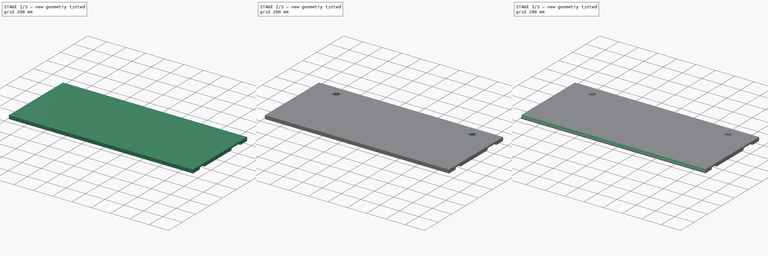
[diagram: build sequence overview — one tinted view per stage of 3, left to right]
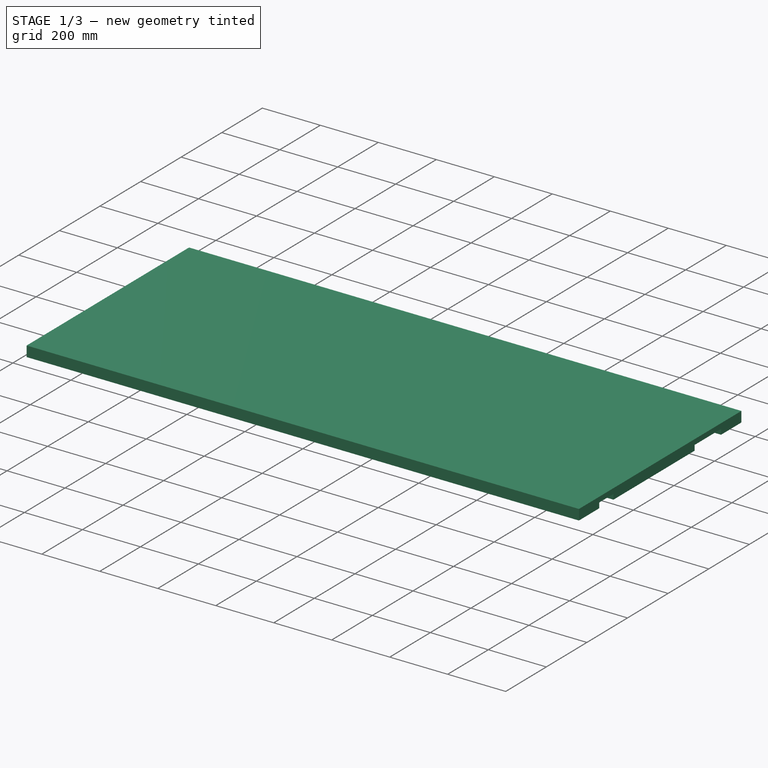
[diagram: stage 1 of 3 — iso view after this stage's code; geometry added in this stage tinted green]
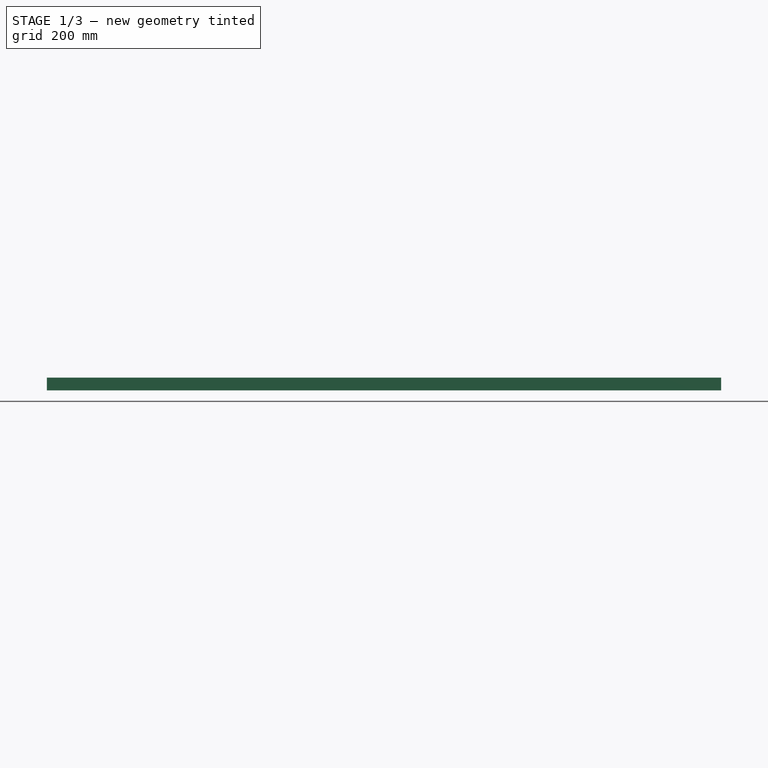
[diagram: stage 1 of 3 — front view after this stage's code; geometry added in this stage tinted green]
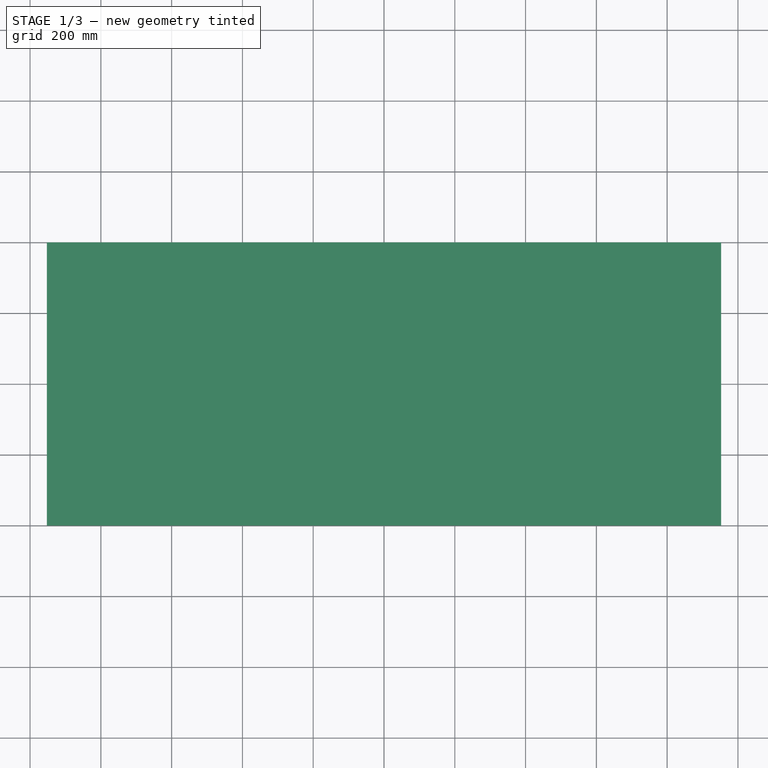
[diagram: stage 1 of 3 — top view after this stage's code; geometry added in this stage tinted green]
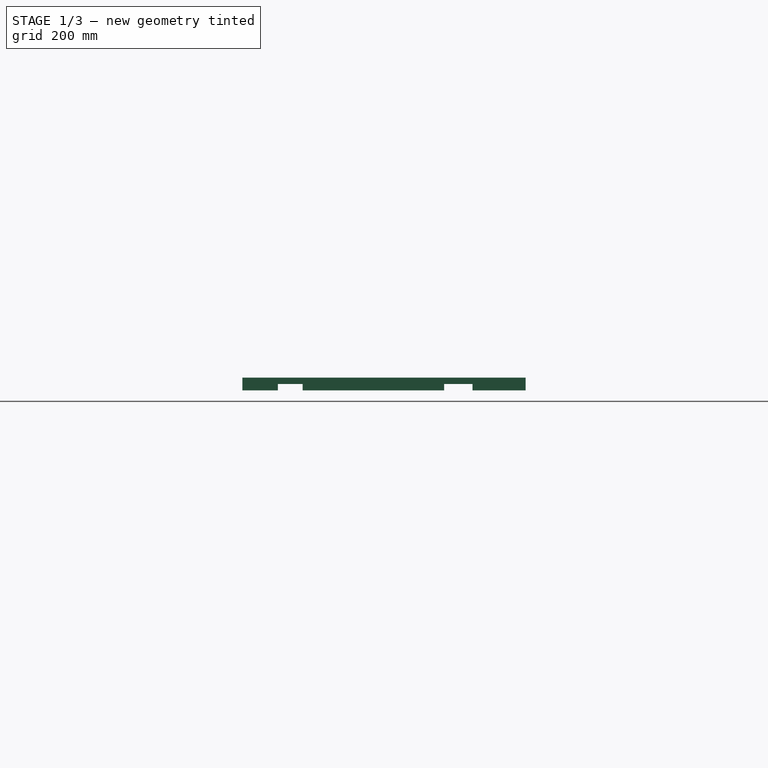
[diagram: stage 1 of 3 — right view after this stage's code; geometry added in this stage tinted green]
FCSTD DOCUMENT  (FreeCAD 0.20R29177 +426 (Git))
Label: desks
License: All rights reserved
LicenseURL: http://en.wikipedia.org/wiki/All_rights_reserved
objects: Sketcher::SketchObject×3, PartDesign::Pad×2, PartDesign::Fillet×2, PartDesign::Pocket×1, PartDesign::Chamfer×1, PartDesign::Body×1
note: 16 computed .brp shape members not serialized (recipe doc carries the construction recipe); baked Part::Feature solids carry a one-line shape summary decoded from their .brp

FEATURE [Sketcher::SketchObject] Sketch004  label="Sketch: Raw Board"
  FullyConstrained = true
  MapMode = 5
  Support = -> [XY_Plane002]
  sketch-geometry (4):
    g0: LineSegment StartX=-952.5 StartY=400 StartZ=0 EndX=952.5 EndY=400 EndZ=0
    g1: LineSegment StartX=952.5 StartY=400 StartZ=0 EndX=952.5 EndY=-400 EndZ=0
    g2: LineSegment StartX=952.5 StartY=-400 StartZ=0 EndX=-952.5 EndY=-400 EndZ=0
    g3: LineSegment StartX=-952.5 StartY=-400 StartZ=0 EndX=-952.5 EndY=400 EndZ=0
  constraints (11):
    c: Coincident(g0,g1)
    c: Coincident(g1,g2)
    c: Coincident(g2,g3)
    c: Coincident(g3,g0)
    c: Horizontal(g0)
    c: Horizontal(g2)
    c: Vertical(g1)
    c: Vertical(g3)
    c: Symmetric(g0,g1,g-1)
    c: Distance(g0) = 1905
    c: Distance(g1) = 800
FEATURE [PartDesign::Pad] Pad001  label="Raw Board"
  Direction = (0,0,1)
  Length = 18
  Length2 = 10
  Profile = -> Sketch004
  ReferenceAxis = -> Sketch004 [N_Axis]
  Refine = true
  Type = 0
FEATURE [Sketcher::SketchObject] Sketch005  label="Sketch: Holes"
  ExternalGeometry = -> [Pad001]
  FullyConstrained = true
  MapMode = 5
  Placement = pos=(0,0,18) rot=(0,0,1;0rad)
  Support = -> [Pad001]
  sketch-geometry (2):
    g0: Circle CenterX=-702.5 CenterY=300 CenterZ=0 NormalX=0 NormalY=0 NormalZ=1 AngleXU=0 Radius=28
    g1: Circle CenterX=702.5 CenterY=300 CenterZ=0 NormalX=0 NormalY=0 NormalZ=1 AngleXU=0 Radius=28
  constraints (5):
    c: Distance(g0,g-3) = 250
    c: Symmetric(g1,g0,g-2)
    c: Distance(g0,g-4) = 100
    c: Diameter(g0) = 56
    c: Equal(g1,g0)
FEATURE [Sketcher::SketchObject] Sketch006  label="Sketch: Support"
  ExternalGeometry = -> [Pad001,Sketch005]
  FullyConstrained = true
  MapMode = 5
  Placement = pos=(0,0,0) rot=(1,0,0;3.14159rad)
  Support = -> [Pad001]
  sketch-geometry (28):
    g0: LineSegment StartX=-952.5 StartY=400 StartZ=0 EndX=952.5 EndY=400 EndZ=0
    g1: LineSegment StartX=952.5 StartY=400 StartZ=0 EndX=952.5 EndY=300 EndZ=0
    g2: LineSegment StartX=952.5 StartY=300 StartZ=0 EndX=-952.5 EndY=300 EndZ=0
    g3: LineSegment StartX=-952.5 StartY=300 StartZ=0 EndX=-952.5 EndY=400 EndZ=0
    g4: LineSegment StartX=952.5 StartY=-300 StartZ=0 EndX=952.5 EndY=-400 EndZ=0
    g5: LineSegment StartX=952.5 StartY=-400 StartZ=0 EndX=-952.5 EndY=-400 EndZ=0
    g6: LineSegment StartX=-952.5 StartY=-400 StartZ=0 EndX=-952.5 EndY=-300 EndZ=0
    g7: LineSegment StartX=-952.5 StartY=-300 StartZ=0 EndX=-747.5 EndY=-300 EndZ=0
    g8: LineSegment StartX=-747.5 StartY=-300 StartZ=0 EndX=-747.5 EndY=-250 EndZ=0
    g9: LineSegment StartX=-747.5 StartY=-250 StartZ=0 EndX=-657.5 EndY=-250 EndZ=0
    g10: LineSegment StartX=-657.5 StartY=-250 StartZ=0 EndX=-657.5 EndY=-300 EndZ=0
    g11: LineSegment StartX=-657.5 StartY=-300 StartZ=0 EndX=657.5 EndY=-300 EndZ=0
    g12: LineSegment StartX=657.5 StartY=-300 StartZ=0 EndX=657.5 EndY=-250 EndZ=0
    g13: LineSegment StartX=657.5 StartY=-250 StartZ=0 EndX=747.5 EndY=-250 EndZ=0
    g14: LineSegment StartX=747.5 StartY=-250 StartZ=0 EndX=747.5 EndY=-300 EndZ=0
    g15: LineSegment StartX=747.5 StartY=-300 StartZ=0 EndX=952.5 EndY=-300 EndZ=0
    g16: LineSegment StartX=-747.5 StartY=-300 StartZ=0 EndX=-702.5 EndY=-300 EndZ=0
    g17: LineSegment StartX=-702.5 StartY=-300 StartZ=0 EndX=-657.5 EndY=-300 EndZ=0
    g18: LineSegment StartX=-952.5 StartY=230 StartZ=0 EndX=-862.5 EndY=230 EndZ=0
    g19: LineSegment StartX=-862.5 StartY=230 StartZ=0 EndX=-862.5 EndY=-170 EndZ=0
    g20: LineSegment StartX=-862.5 StartY=-170 StartZ=0 EndX=-952.5 EndY=-170 EndZ=0
    g21: LineSegment StartX=-952.5 StartY=-170 StartZ=0 EndX=-952.5 EndY=230 EndZ=0
    g22: LineSegment StartX=862.5 StartY=230 StartZ=0 EndX=952.5 EndY=230 EndZ=0
    g23: LineSegment StartX=952.5 StartY=230 StartZ=0 EndX=952.5 EndY=-170 EndZ=0
    g24: LineSegment StartX=952.5 StartY=-170 StartZ=0 EndX=862.5 EndY=-170 EndZ=0
    g25: LineSegment StartX=862.5 StartY=-170 StartZ=0 EndX=862.5 EndY=230 EndZ=0
    g26: LineSegment StartX=657.5 StartY=-300 StartZ=0 EndX=702.5 EndY=-300 EndZ=0
    g27: LineSegment StartX=702.5 StartY=-300 StartZ=0 EndX=747.5 EndY=-300 EndZ=0
  constraints (74):
    c: Coincident(g0,g1)
    c: Coincident(g1,g2)
    c: Coincident(g2,g3)
    c: Coincident(g3,g0)
    c: Horizontal(g2)
    c: Vertical(g1)
    c: Vertical(g3)
    c: Coincident(g0,g-5)
    c: Coincident(g0,g-4)
    c: Distance(g2,g0) = 100
    c: Coincident(g4,g5)
    c: Coincident(g5,g6)
    c: Vertical(g4)
    c: Coincident(g6,g7)
    c: Horizontal(g7)
    c: Coincident(g7,g8)
    c: Coincident(g8,g9)
    c: Horizontal(g9)
    c: Coincident(g9,g10)
    c: Vertical(g10)
    c: Coincident(g10,g11)
    c: Coincident(g11,g12)
    c: Coincident(g12,g13)
    c: Horizontal(g13)
    c: Coincident(g13,g14)
    c: Coincident(g14,g15)
    c: Horizontal(g15)
    c: Coincident(g4,g15)
    c: Coincident(g5,g-6)
    c: Vertical(g6)
    c: Coincident(g4,g-6)
    c: Distance(g6,g5) = 100
    c: Vertical(g8)
    c: Coincident(g16,g7)
    c: Coincident(g17,g16)
    c: Coincident(g17,g10)
    c: Equal(g16,g17)
    c: Distance(g9) = 90
    c: Equal(g8,g10)
    c: Distance(g8) = 50
    c: Vertical(g12)
    c: Equal(g13,g9)
    c: Equal(g12,g10)
    c: Vertical(g14)
    c: Equal(g14,g12)
    c: Coincident(g18,g19)
    c: Coincident(g19,g20)
    c: Coincident(g20,g21)
    c: Coincident(g21,g18)
    c: Horizontal(g18)
    c: Horizontal(g20)
    c: Vertical(g19)
    c: Vertical(g21)
    c: PointOnObject(g18,g-3)
    c: Distance(g18,g2) = 70
    c: Distance(g18,g21) = 90
    c: Distance(g19) = 400
    c: Coincident(g22,g23)
    c: Coincident(g23,g24)
    c: Coincident(g24,g25)
    c: Coincident(g25,g22)
    c: Horizontal(g22)
    c: Horizontal(g24)
    c: Vertical(g23)
    c: Symmetric(g22,g18,g-2)
    c: PointOnObject(g22,g-5)
    c: Symmetric(g24,g19,g-2)
    c: Coincident(g16,g-7)
    c: Horizontal(g11)
    c: Coincident(g26,g11)
    c: Coincident(g26,g-8)
    c: Coincident(g27,g26)
    c: Coincident(g27,g14)
    c: Equal(g27,g26)
FEATURE [PartDesign::Pad] Pad002  label="Support"
  BaseFeature = -> Pad001
  Direction = (0,0,-1)
  Length = 18
  Length2 = 10
  Profile = -> Sketch006
  ReferenceAxis = -> Sketch006 [N_Axis]
  Refine = true
  Type = 0
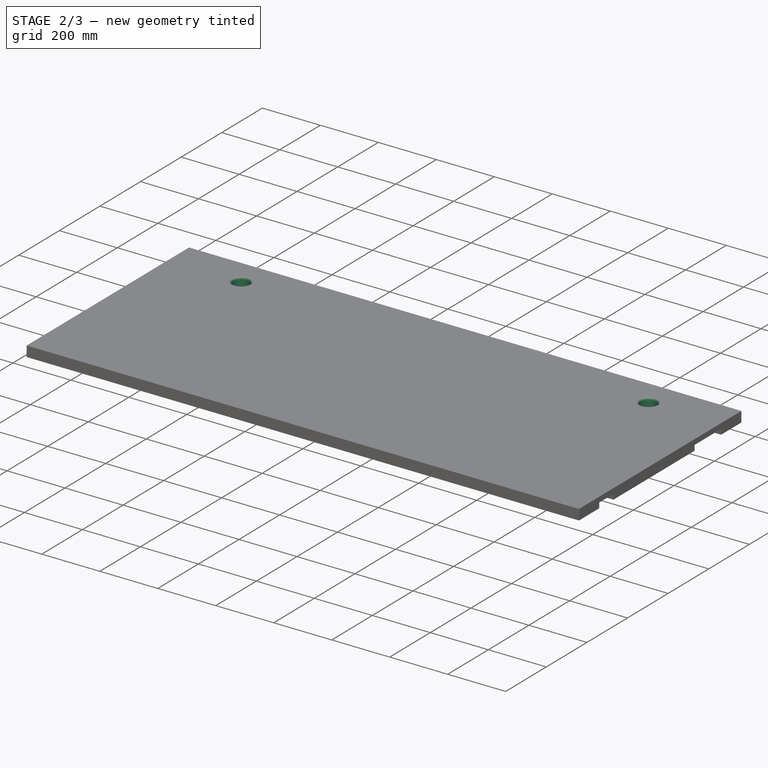
[diagram: stage 2 of 3 — iso view after this stage's code; geometry added in this stage tinted green]
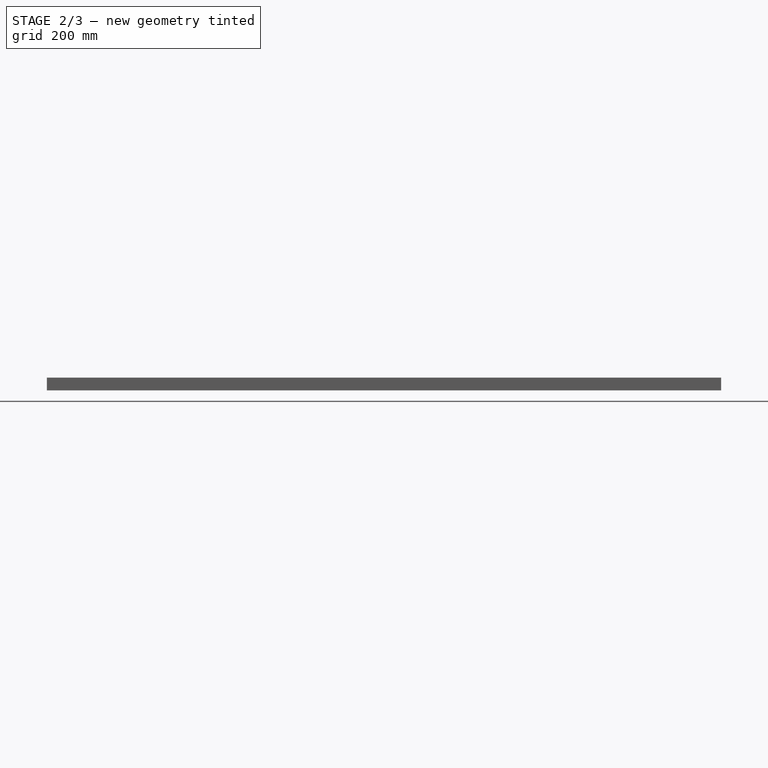
[diagram: stage 2 of 3 — front view after this stage's code; geometry added in this stage tinted green]
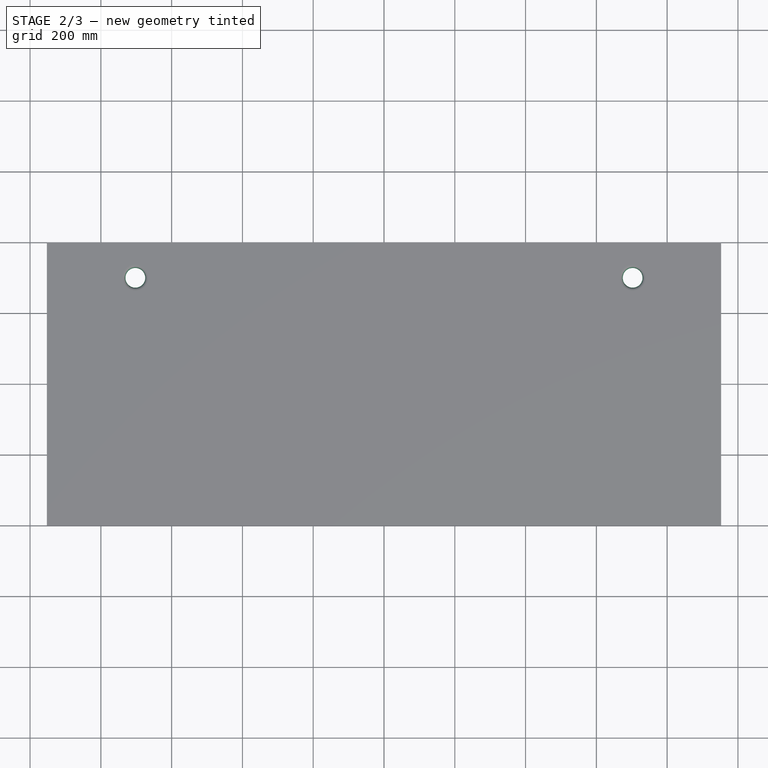
[diagram: stage 2 of 3 — top view after this stage's code; geometry added in this stage tinted green]
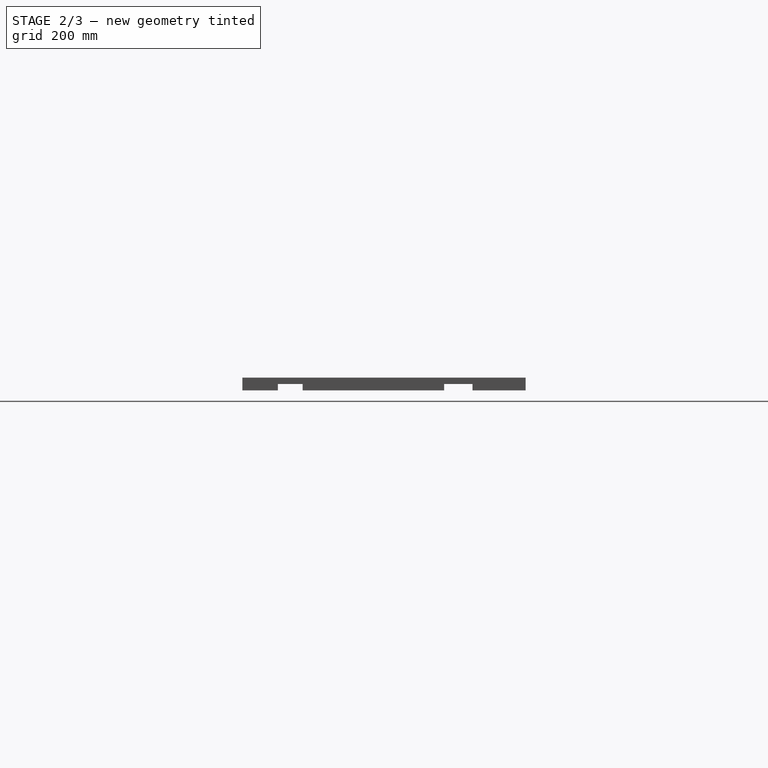
[diagram: stage 2 of 3 — right view after this stage's code; geometry added in this stage tinted green]
FEATURE [PartDesign::Pocket] Pocket
  BaseFeature = -> Pad002
  Direction = (0,0,-1)
  Length = 40
  Length2 = 5
  Profile = -> Sketch005
  ReferenceAxis = -> Sketch005 [N_Axis]
  Refine = true
  Type = 0
FEATURE [PartDesign::Fillet] Fillet002  label="Fillet: Holes"
  Base = -> Pocket [Edge34,Edge32,Edge5,Edge6]
  BaseFeature = -> Pocket
  Radius = 9.2
  Refine = true
  SupportTransform = false
  UseAllEdges = false
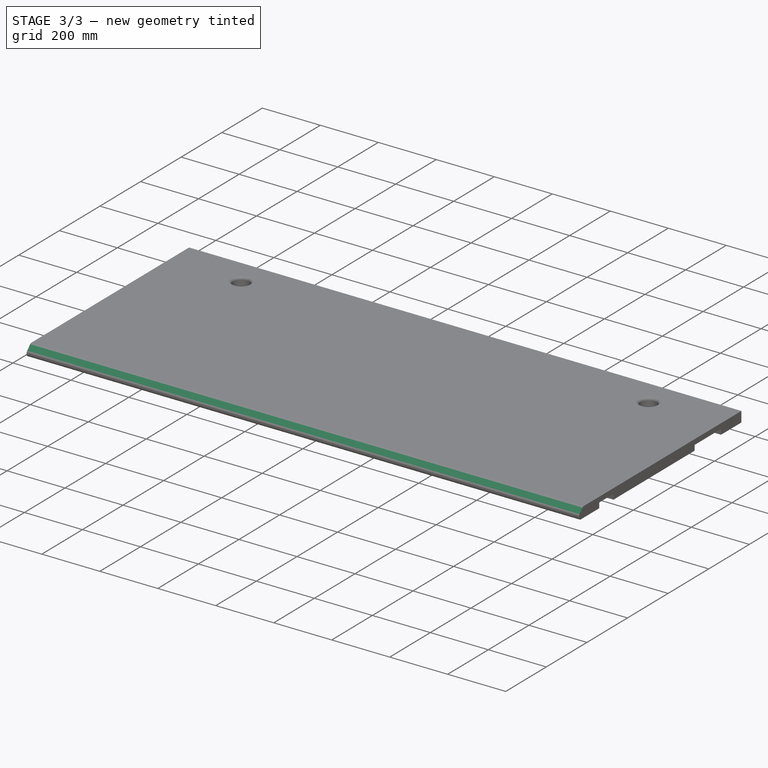
[diagram: stage 3 of 3 — iso view after this stage's code; geometry added in this stage tinted green]
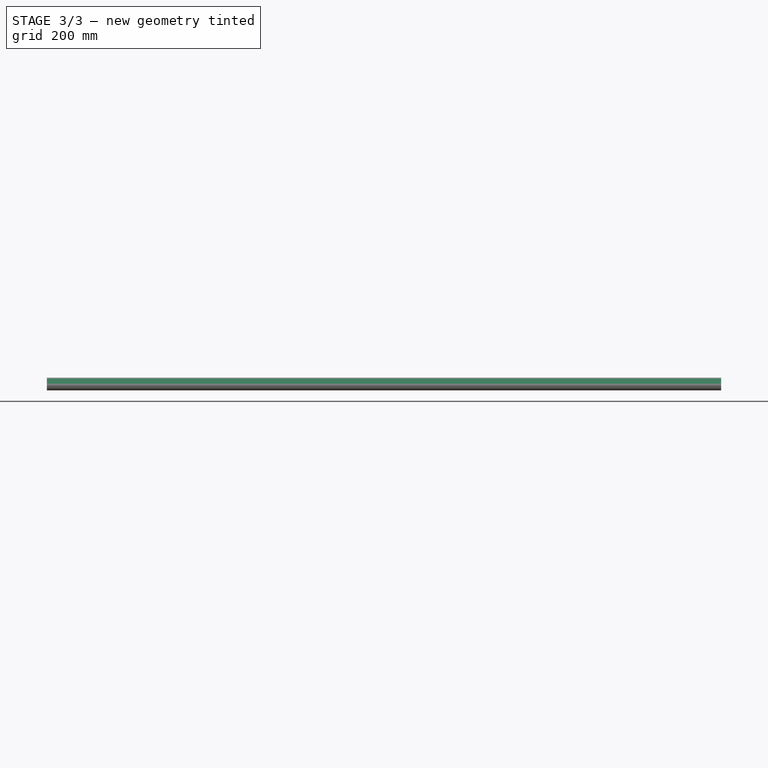
[diagram: stage 3 of 3 — front view after this stage's code; geometry added in this stage tinted green]
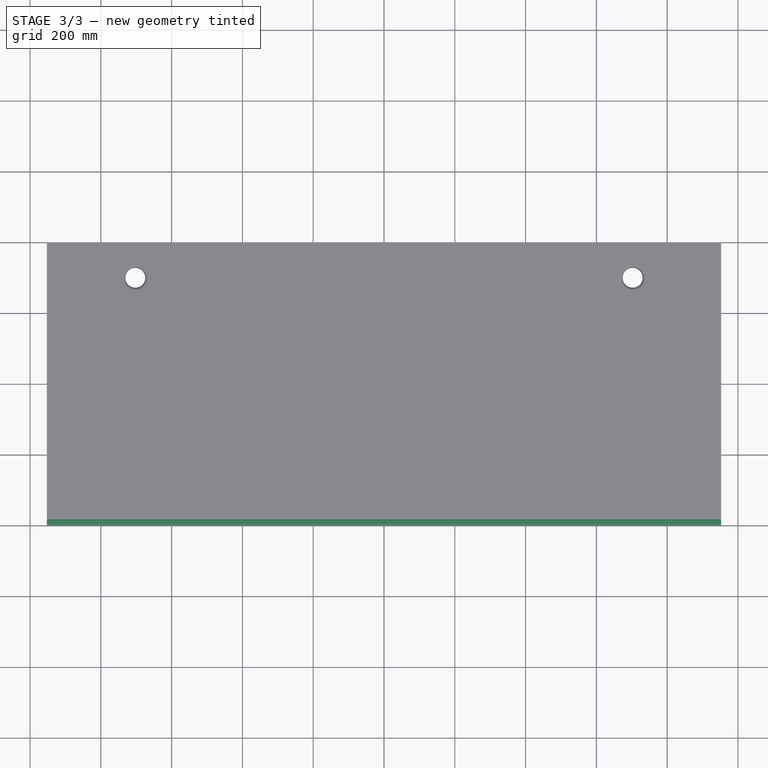
[diagram: stage 3 of 3 — top view after this stage's code; geometry added in this stage tinted green]
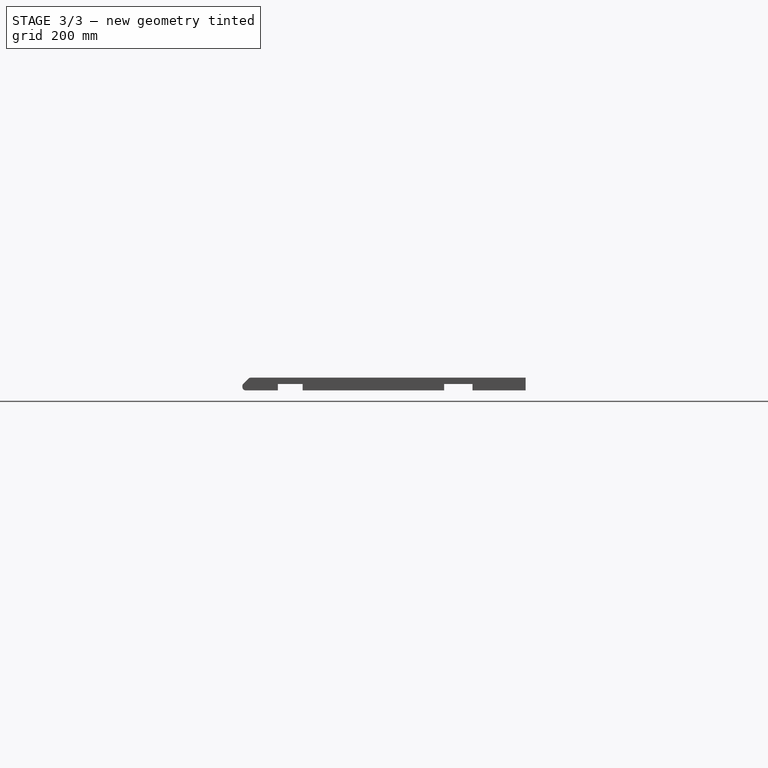
[diagram: stage 3 of 3 — right view after this stage's code; geometry added in this stage tinted green]
FEATURE [PartDesign::Chamfer] Chamfer
  Angle = 45
  Base = -> Fillet002 [Edge5]
  BaseFeature = -> Fillet002
  ChamferType = 0
  FlipDirection = false
  Refine = true
  Size = 20
  Size2 = 1
  SupportTransform = false
  UseAllEdges = false
FEATURE [PartDesign::Fillet] Fillet003  label="Fillet: Front"
  Base = -> Chamfer [Edge37,Edge20,Edge2]
  BaseFeature = -> Chamfer
  Radius = 9.2
  Refine = true
  SupportTransform = false
  UseAllEdges = false
FEATURE [PartDesign::Body] Body002  label="Desk"
  Group = -> [Sketch004,Pad001,Sketch005,Sketch006,Pad002,Pocket,Fillet002,Chamfer,Fillet003]
  Origin = -> Origin002
  Tip = -> Fillet003
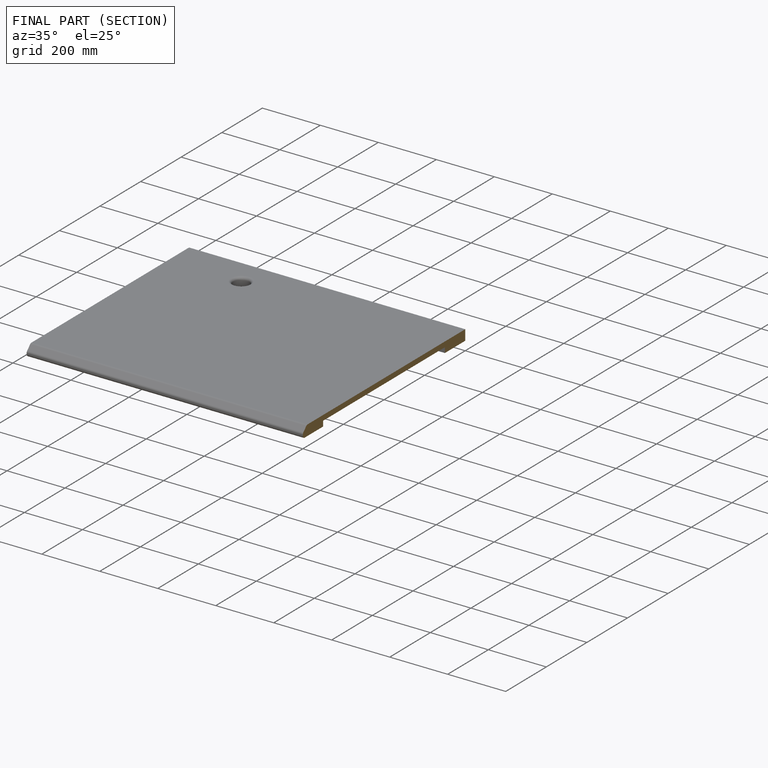
[diagram: finished part — half-section view (interior)]
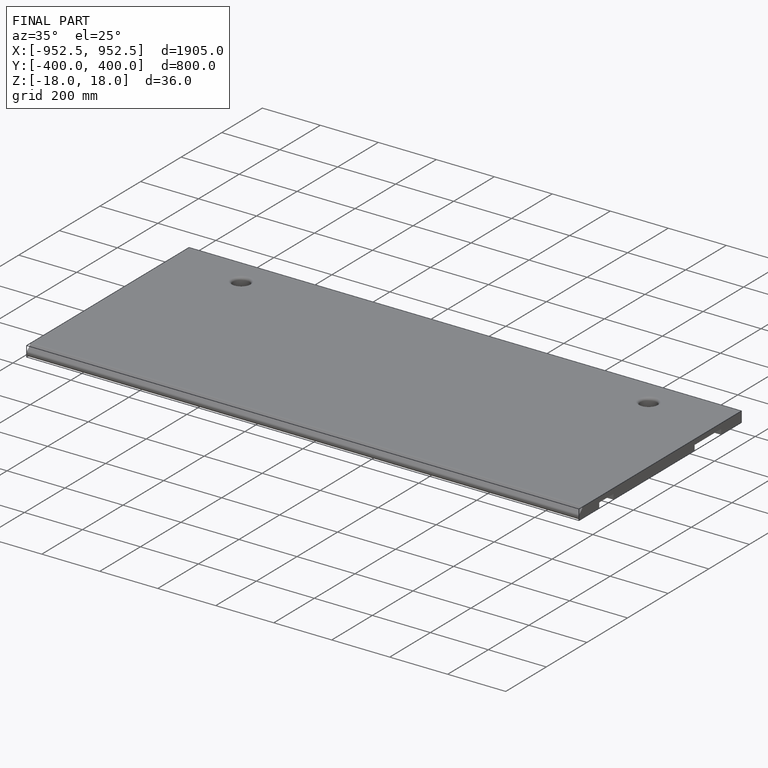
[diagram: finished part — iso view with bounding-box wireframe]
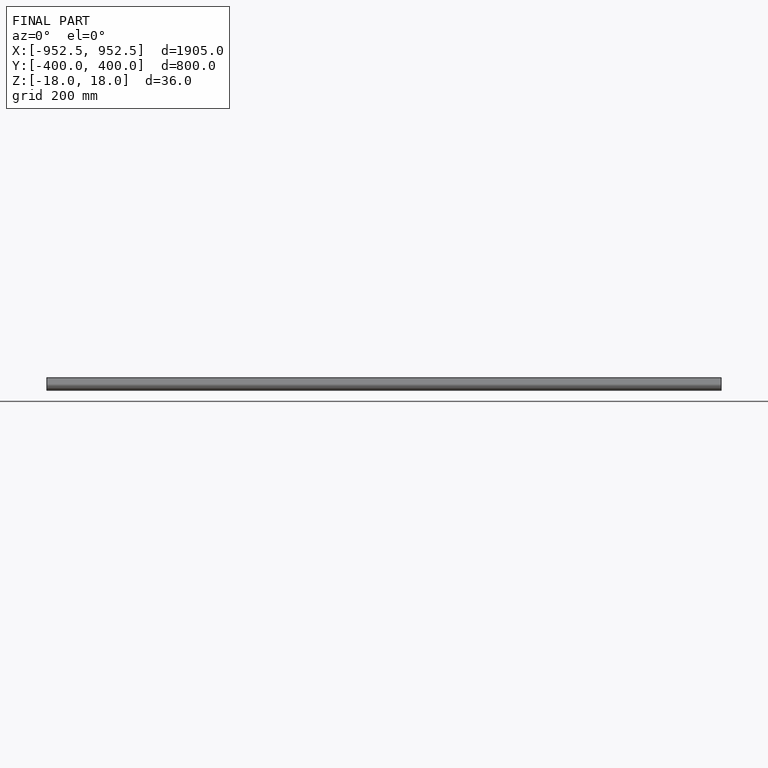
[diagram: finished part — front view with bounding-box wireframe]
